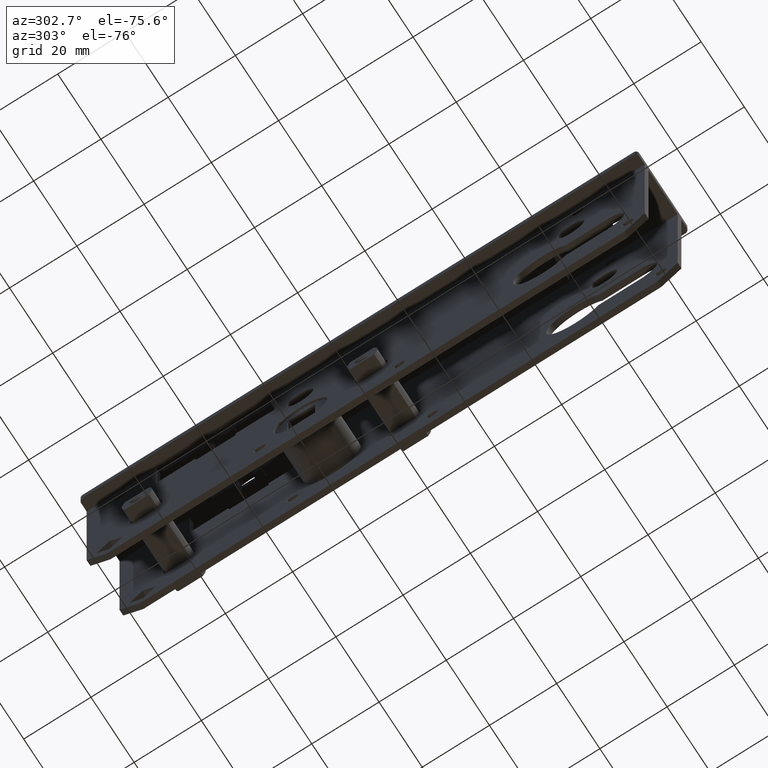
[diagram: clean part render]
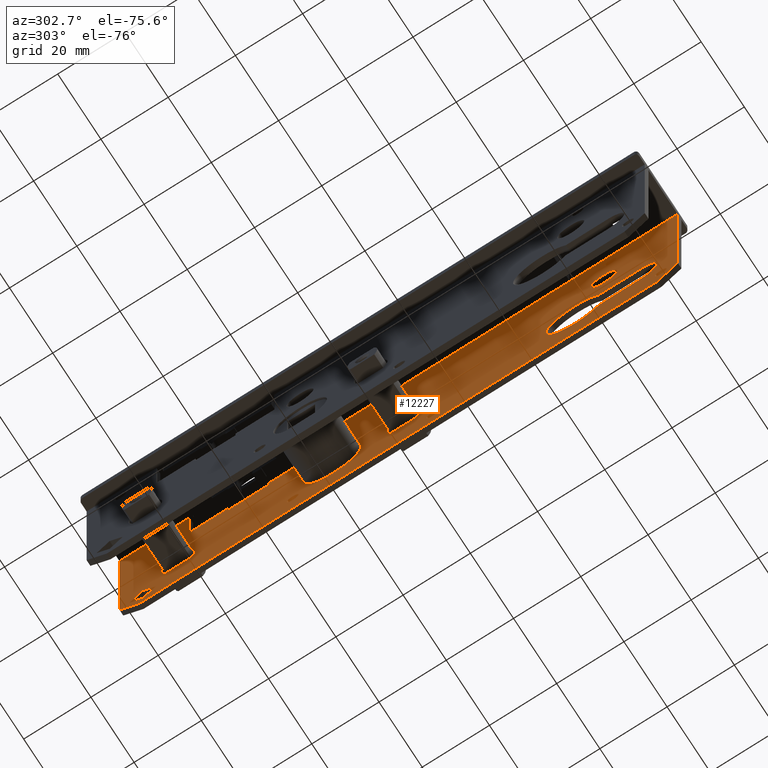
[diagram: same view with one face highlighted and labeled with its STEP entity id]
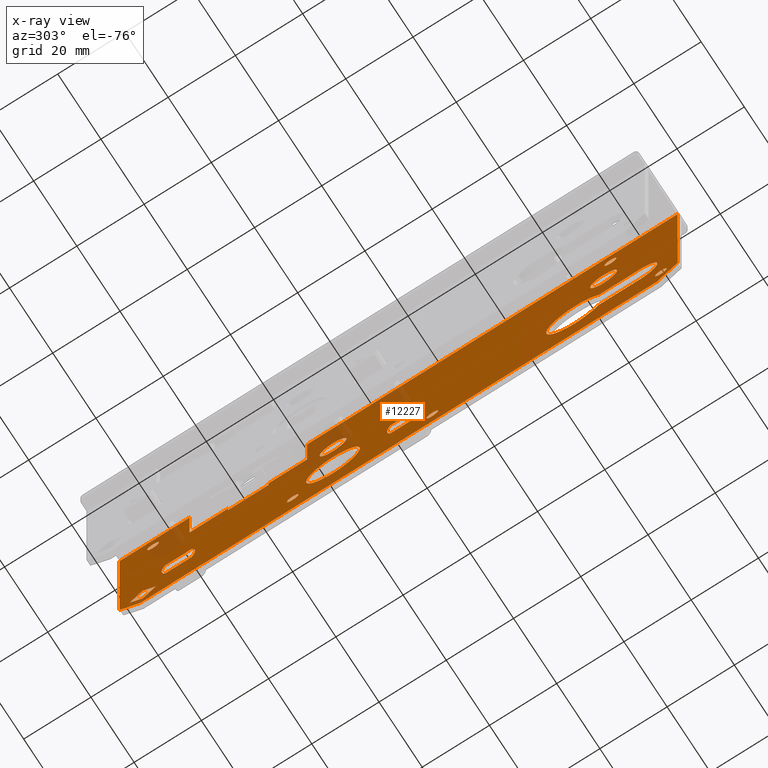
[diagram: x-ray of the same camera — body ghosted, the highlighted face saturated]
A machine part, auxiliary view. The second image highlights one B-rep face of the part: STEP entity #12227.
The next image is the same camera in x-ray: the body ghosted, the highlighted face saturated — about 9% of this face is hidden behind the body in this view.
In plain terms, the highlighted planar face has unit normal (1, -0, 0).
Its self-contained STEP definition (entity closure, byte-faithful):
#3 = EDGE_CURVE ( 'NONE', #12643, #15763, #4450, .T. ) ;
#5 = VERTEX_POINT ( 'NONE', #646 ) ;
#55 = CARTESIAN_POINT ( 'NONE',  ( 6.749999999999978684, 69.42820323027548568, -42.50000000000000000 ) ) ;
#64 = CARTESIAN_POINT ( 'NONE',  ( 6.749999999999968914, -5.428203230275540747, -34.50000000000000000 ) ) ;
#189 = DIRECTION ( 'NONE',  ( 1.250701857229131642E-16, 1.000000000000000000, -0.000000000000000000 ) ) ;
#302 = VECTOR ( 'NONE', #913, 1000.000000000000000 ) ;
#315 = EDGE_LOOP ( 'NONE', ( #10602 ) ) ;
#337 = DIRECTION ( 'NONE',  ( 1.084202172485504434E-16, 1.000000000000000000, 0.000000000000000000 ) ) ;
#406 = CARTESIAN_POINT ( 'NONE',  ( 6.749999999999968026, -4.500000000000025757, -38.50000000000000000 ) ) ;
#470 = CARTESIAN_POINT ( 'NONE',  ( 6.749999999999979572, 82.99999999999997158, -18.09999999999999076 ) ) ;
#494 = CARTESIAN_POINT ( 'NONE',  ( 6.749999999999961808, -57.00000000000000711, -20.50000000000000355 ) ) ;
#646 = CARTESIAN_POINT ( 'NONE',  ( 6.749999999999968026, -8.250000000000026645, -49.50000000000000000 ) ) ;
#658 = AXIS2_PLACEMENT_3D ( 'NONE', #5201, #10115, #5410 ) ;
#679 = EDGE_CURVE ( 'NONE', #18658, #863, #16751, .T. ) ;
#686 = VECTOR ( 'NONE', #12286, 1000.000000000000000 ) ;
#743 = CIRCLE ( 'NONE', #4590, 8.000000000000007105 ) ;
#841 = LINE ( 'NONE', #9186, #15372 ) ;
#848 = LINE ( 'NONE', #5375, #18340 ) ;
#863 = VERTEX_POINT ( 'NONE', #12505 ) ;
#891 = DIRECTION ( 'NONE',  ( -7.792044224716980746E-17, -0.7071067811865459074, 0.7071067811865491270 ) ) ;
#896 = CARTESIAN_POINT ( 'NONE',  ( 6.749999999999979572, 82.99999999999998579, -56.50000000000000000 ) ) ;
#913 = DIRECTION ( 'NONE',  ( -0.000000000000000000, -0.000000000000000000, 1.000000000000000000 ) ) ;
#1045 = CARTESIAN_POINT ( 'NONE',  ( 6.749999999999978684, 77.00000000000000000, -56.50000000000000000 ) ) ;
#1171 = PLANE ( 'NONE',  #13525 ) ;
#1251 = ORIENTED_EDGE ( 'NONE', *, *, #13498, .T. ) ;
#1292 = VERTEX_POINT ( 'NONE', #14004 ) ;
#1520 = ORIENTED_EDGE ( 'NONE', *, *, #14520, .T. ) ;
#1531 = ORIENTED_EDGE ( 'NONE', *, *, #12502, .F. ) ;
#1538 = ORIENTED_EDGE ( 'NONE', *, *, #9021, .T. ) ;
#1724 = DIRECTION ( 'NONE',  ( 1.000000000000000000, -1.250701857229131642E-16, 0.000000000000000000 ) ) ;
#1750 = CARTESIAN_POINT ( 'NONE',  ( 6.749999999999975131, 500000.0000000000582, -16.50000000000000000 ) ) ;
#1787 = VECTOR ( 'NONE', #3080, 1000.000000000000000 ) ;
#1794 = CARTESIAN_POINT ( 'NONE',  ( 6.749999999999979572, 82.99999999999998579, -50.49999999999998579 ) ) ;
#1846 = DIRECTION ( 'NONE',  ( 0.000000000000000000, 1.000000000000000000, 0.000000000000000000 ) ) ;
#2048 = ORIENTED_EDGE ( 'NONE', *, *, #19955, .T. ) ;
#2063 = VECTOR ( 'NONE', #5594, 1000.000000000000114 ) ;
#2129 = ORIENTED_EDGE ( 'NONE', *, *, #18979, .T. ) ;
#2408 = DIRECTION ( 'NONE',  ( 1.250701857229131642E-16, 1.000000000000000000, 0.000000000000000000 ) ) ;
#2444 = AXIS2_PLACEMENT_3D ( 'NONE', #17216, #7806, #3387 ) ;
#2467 = CARTESIAN_POINT ( 'NONE',  ( 6.749999999999975131, 38.69499999999997186, -56.50000000000000000 ) ) ;
#2577 = VERTEX_POINT ( 'NONE', #55 ) ;
#2586 = VERTEX_POINT ( 'NONE', #14229 ) ;
#2613 = EDGE_LOOP ( 'NONE', ( #6534 ) ) ;
#2878 = CARTESIAN_POINT ( 'NONE',  ( 6.749999999999960920, -52.50000000000002132, -38.50000000000000000 ) ) ;
#2940 = AXIS2_PLACEMENT_3D ( 'NONE', #14484, #8204, #16047 ) ;
#3031 = AXIS2_PLACEMENT_3D ( 'NONE', #5935, #20139, #11993 ) ;
#3052 = LINE ( 'NONE', #5789, #19340 ) ;
#3080 = DIRECTION ( 'NONE',  ( -0.000000000000000000, -0.000000000000000000, 1.000000000000000000 ) ) ;
#3170 = CARTESIAN_POINT ( 'NONE',  ( 6.749999999999977796, 62.19499999999997186, -1.500000000000000000 ) ) ;
#3182 = ORIENTED_EDGE ( 'NONE', *, *, #12861, .T. ) ;
#3387 = DIRECTION ( 'NONE',  ( 1.084202172485504434E-16, 1.000000000000000000, 0.000000000000000000 ) ) ;
#3442 = ORIENTED_EDGE ( 'NONE', *, *, #16940, .F. ) ;
#3446 = CARTESIAN_POINT ( 'NONE',  ( 6.749999999999978684, 79.99999999999998579, -49.61091270347398563 ) ) ;
#3503 = ORIENTED_EDGE ( 'NONE', *, *, #10614, .F. ) ;
#3532 = VERTEX_POINT ( 'NONE', #7684 ) ;
#3545 = CIRCLE ( 'NONE', #14390, 4.000000000000000000 ) ;
#3585 = LINE ( 'NONE', #6425, #8536 ) ;
#3617 = EDGE_CURVE ( 'NONE', #13131, #10247, #12596, .T. ) ;
#3638 = CARTESIAN_POINT ( 'NONE',  ( 6.749999999999978684, 69.42820323027548568, -34.50000000000000711 ) ) ;
#3972 = DIRECTION ( 'NONE',  ( 1.000000000000000000, -1.250701857229131642E-16, 0.000000000000000000 ) ) ;
#3977 = EDGE_CURVE ( 'NONE', #20305, #13610, #17014, .T. ) ;
#4165 = VERTEX_POINT ( 'NONE', #16919 ) ;
#4167 = CARTESIAN_POINT ( 'NONE',  ( 6.749999999999979572, 82.99999999999998579, -42.49999999999999289 ) ) ;
#4272 = ORIENTED_EDGE ( 'NONE', *, *, #11344, .T. ) ;
#4305 = CARTESIAN_POINT ( 'NONE',  ( 6.749999999999979572, 82.99999999999997158, -43.54999999999993321 ) ) ;
#4353 = DIRECTION ( 'NONE',  ( 8.843797644893281847E-17, 0.7071067811865474617, -0.7071067811865474617 ) ) ;
#4450 = LINE ( 'NONE', #6816, #13597 ) ;
#4475 = DIRECTION ( 'NONE',  ( 2.168404344971008868E-16, 1.000000000000000000, 0.000000000000000000 ) ) ;
#4507 = VECTOR ( 'NONE', #15163, 1000.000000000000000 ) ;
#4511 = EDGE_LOOP ( 'NONE', ( #18365, #6928, #9113, #6627 ) ) ;
#4556 = CARTESIAN_POINT ( 'NONE',  ( 6.749999999999979572, 82.99999999999998579, -33.44999999999999574 ) ) ;
#4566 = ORIENTED_EDGE ( 'NONE', *, *, #16549, .T. ) ;
#4590 = AXIS2_PLACEMENT_3D ( 'NONE', #17120, #9282, #18800 ) ;
#4633 = CARTESIAN_POINT ( 'NONE',  ( 6.749999999999960920, -71.90000000000001990, -33.44999999999999574 ) ) ;
#4740 = DIRECTION ( 'NONE',  ( 1.084202172485503941E-16, 1.000000000000000000, 0.000000000000000000 ) ) ;
#4794 = CARTESIAN_POINT ( 'NONE',  ( 6.749999999999957367, -78.00000000000002842, -49.50000000000000000 ) ) ;
#4835 = ORIENTED_EDGE ( 'NONE', *, *, #12226, .T. ) ;
#4858 = LINE ( 'NONE', #14076, #686 ) ;
#5017 = LINE ( 'NONE', #470, #5527 ) ;
#5033 = LINE ( 'NONE', #12689, #20331 ) ;
#5058 = AXIS2_PLACEMENT_3D ( 'NONE', #14937, #3972, #5357 ) ;
#5069 = LINE ( 'NONE', #18551, #16647 ) ;
#5163 = CARTESIAN_POINT ( 'NONE',  ( 6.749999999999960920, -61.25000000000001421, -7.500000000000007105 ) ) ;
#5201 = CARTESIAN_POINT ( 'NONE',  ( 6.749999999999975131, 68.49999999999997158, -38.50000000000000711 ) ) ;
#5295 = CARTESIAN_POINT ( 'NONE',  ( 6.749999999999971578, 31.49999999999997158, -46.50000000000000000 ) ) ;
#5324 = CARTESIAN_POINT ( 'NONE',  ( 6.749999999999960920, -83.00000000000001421, -50.49999999999997158 ) ) ;
#5357 = DIRECTION ( 'NONE',  ( 2.168404344971006896E-16, 1.000000000000000000, 0.000000000000000000 ) ) ;
#5375 = CARTESIAN_POINT ( 'NONE',  ( 6.749999999999977796, 62.19499999999997186, -56.50000000000000000 ) ) ;
#5410 = DIRECTION ( 'NONE',  ( 1.084202172485503448E-16, 1.000000000000000000, 0.000000000000000000 ) ) ;
#5481 = CARTESIAN_POINT ( 'NONE',  ( 6.749999999999978684, 72.22182540694797126, -49.61091270347398563 ) ) ;
#5527 = VECTOR ( 'NONE', #20158, 1000.000000000000000 ) ;
#5558 = FACE_BOUND ( 'NONE', #15799, .T. ) ;
#5594 = DIRECTION ( 'NONE',  ( -8.843797644893281847E-17, -0.7071067811865474617, 0.7071067811865474617 ) ) ;
#5700 = EDGE_CURVE ( 'NONE', #9346, #13835, #16762, .T. ) ;
#5789 = CARTESIAN_POINT ( 'NONE',  ( 6.749999999999979572, 82.99999999999998579, -34.50000000000000000 ) ) ;
#5845 = AXIS2_PLACEMENT_3D ( 'NONE', #4794, #11148, #1846 ) ;
#5935 = CARTESIAN_POINT ( 'NONE',  ( 6.749999999999960920, -63.00000000000001421, -7.500000000000007105 ) ) ;
#6019 = DIRECTION ( 'NONE',  ( 1.250701857229131642E-16, 1.000000000000000000, -0.000000000000000000 ) ) ;
#6051 = FACE_BOUND ( 'NONE', #315, .T. ) ;
#6092 = VECTOR ( 'NONE', #891, 1000.000000000000000 ) ;
#6134 = DIRECTION ( 'NONE',  ( -5.424054682957916986E-31, -4.336808689942016158E-15, 1.000000000000000000 ) ) ;
#6137 = EDGE_CURVE ( 'NONE', #19074, #2586, #5069, .T. ) ;
#6150 = ORIENTED_EDGE ( 'NONE', *, *, #16124, .T. ) ;
#6239 = CARTESIAN_POINT ( 'NONE',  ( 6.749999999999973355, 27.19499999999996831, -1.500000000000000000 ) ) ;
#6245 = EDGE_CURVE ( 'NONE', #11218, #16339, #16419, .T. ) ;
#6293 = CIRCLE ( 'NONE', #2940, 1.749999999999996447 ) ;
#6372 = DIRECTION ( 'NONE',  ( -0.000000000000000000, -1.000000000000000000, -0.000000000000000000 ) ) ;
#6423 = ORIENTED_EDGE ( 'NONE', *, *, #18346, .T. ) ;
#6425 = CARTESIAN_POINT ( 'NONE',  ( 6.749999999999979572, 82.99999999999998579, -1.500000000000000000 ) ) ;
#6465 = CARTESIAN_POINT ( 'NONE',  ( 6.749999999999960920, -59.52281994643178820, -33.44999999999999574 ) ) ;
#6534 = ORIENTED_EDGE ( 'NONE', *, *, #12672, .T. ) ;
#6541 = FACE_BOUND ( 'NONE', #20143, .T. ) ;
#6627 = ORIENTED_EDGE ( 'NONE', *, *, #17825, .T. ) ;
#6655 = EDGE_LOOP ( 'NONE', ( #6150, #4566, #19698, #17214 ) ) ;
#6805 = CARTESIAN_POINT ( 'NONE',  ( 6.749999999999978684, 77.00000000000000000, -56.50000000000000000 ) ) ;
#6816 = CARTESIAN_POINT ( 'NONE',  ( 6.749999999999960920, -83.00000000000001421, -56.50000000000000000 ) ) ;
#6830 = CARTESIAN_POINT ( 'NONE',  ( 6.749999999999971578, 33.24999999999996447, -46.50000000000000000 ) ) ;
#6928 = ORIENTED_EDGE ( 'NONE', *, *, #12244, .T. ) ;
#6988 = LINE ( 'NONE', #15451, #15108 ) ;
#7058 = FACE_BOUND ( 'NONE', #17523, .T. ) ;
#7220 = DIRECTION ( 'NONE',  ( 0.000000000000000000, 0.000000000000000000, -1.000000000000000000 ) ) ;
#7292 = LINE ( 'NONE', #1750, #19384 ) ;
#7343 = DIRECTION ( 'NONE',  ( 1.250701857229131642E-16, 1.000000000000000000, 0.000000000000000000 ) ) ;
#7481 = EDGE_CURVE ( 'NONE', #16242, #16242, #3545, .T. ) ;
#7524 = FACE_BOUND ( 'NONE', #12438, .T. ) ;
#7609 = VERTEX_POINT ( 'NONE', #6830 ) ;
#7611 = EDGE_CURVE ( 'NONE', #14289, #19074, #5033, .T. ) ;
#7684 = CARTESIAN_POINT ( 'NONE',  ( 6.749999999999975131, 38.69499999999997186, -18.10000000000000142 ) ) ;
#7717 = VERTEX_POINT ( 'NONE', #3170 ) ;
#7729 = CIRCLE ( 'NONE', #17116, 1.750000000000001554 ) ;
#7806 = DIRECTION ( 'NONE',  ( 1.000000000000000000, -1.250701857229131642E-16, 0.000000000000000000 ) ) ;
#7823 = DIRECTION ( 'NONE',  ( 8.843797644893281847E-17, 0.7071067811865474617, 0.7071067811865474617 ) ) ;
#7947 = LINE ( 'NONE', #11920, #2063 ) ;
#8204 = DIRECTION ( 'NONE',  ( 1.000000000000000000, -1.250701857229131642E-16, 0.000000000000000000 ) ) ;
#8273 = VECTOR ( 'NONE', #10996, 1000.000000000000000 ) ;
#8306 = ORIENTED_EDGE ( 'NONE', *, *, #13717, .T. ) ;
#8411 = VERTEX_POINT ( 'NONE', #16613 ) ;
#8513 = FACE_BOUND ( 'NONE', #4511, .T. ) ;
#8536 = VECTOR ( 'NONE', #189, 1000.000000000000000 ) ;
#8642 = CARTESIAN_POINT ( 'NONE',  ( 6.749999999999968026, -5.428203230275540747, -42.49999999999999289 ) ) ;
#8948 = EDGE_CURVE ( 'NONE', #15718, #13131, #19347, .T. ) ;
#9021 = EDGE_CURVE ( 'NONE', #11568, #11568, #13406, .T. ) ;
#9095 = VERTEX_POINT ( 'NONE', #13035 ) ;
#9113 = ORIENTED_EDGE ( 'NONE', *, *, #6245, .T. ) ;
#9186 = CARTESIAN_POINT ( 'NONE',  ( 6.749999999999978684, 78.05545635173697860, -51.55545635173699281 ) ) ;
#9208 = EDGE_LOOP ( 'NONE', ( #19956 ) ) ;
#9263 = ORIENTED_EDGE ( 'NONE', *, *, #19642, .T. ) ;
#9282 = DIRECTION ( 'NONE',  ( 1.000000000000000000, -1.250701857229131642E-16, 0.000000000000000000 ) ) ;
#9334 = VERTEX_POINT ( 'NONE', #494 ) ;
#9346 = VERTEX_POINT ( 'NONE', #16995 ) ;
#9367 = CARTESIAN_POINT ( 'NONE',  ( 6.749999999999975131, 61.57179676972446458, -42.50000000000000000 ) ) ;
#9505 = FACE_BOUND ( 'NONE', #14381, .T. ) ;
#9543 = CARTESIAN_POINT ( 'NONE',  ( 6.749999999999978684, 73.00000000000000000, -7.500000000000007105 ) ) ;
#9573 = DIRECTION ( 'NONE',  ( 1.717547996016636297E-16, 1.000000000000000000, 0.000000000000000000 ) ) ;
#9740 = ORIENTED_EDGE ( 'NONE', *, *, #13987, .T. ) ;
#9845 = VERTEX_POINT ( 'NONE', #19298 ) ;
#10073 = CARTESIAN_POINT ( 'NONE',  ( 6.749999999999978684, 74.75000000000000000, -7.500000000000007105 ) ) ;
#10115 = DIRECTION ( 'NONE',  ( 1.000000000000000000, -1.250701857229131642E-16, 0.000000000000000000 ) ) ;
#10118 = DIRECTION ( 'NONE',  ( -0.000000000000000000, -0.000000000000000000, 1.000000000000000000 ) ) ;
#10136 = CARTESIAN_POINT ( 'NONE',  ( 6.749999999999975131, 50.69499999999997897, -18.09999999999999787 ) ) ;
#10138 = CARTESIAN_POINT ( 'NONE',  ( 6.749999999999972466, 23.49999999999997513, -20.50000000000000355 ) ) ;
#10219 = CIRCLE ( 'NONE', #5058, 4.000000000000003553 ) ;
#10247 = VERTEX_POINT ( 'NONE', #9367 ) ;
#10380 = VERTEX_POINT ( 'NONE', #10136 ) ;
#10501 = VECTOR ( 'NONE', #6134, 1000.000000000000000 ) ;
#10525 = ORIENTED_EDGE ( 'NONE', *, *, #17187, .T. ) ;
#10540 = CIRCLE ( 'NONE', #5845, 1.750000000000001554 ) ;
#10602 = ORIENTED_EDGE ( 'NONE', *, *, #11666, .T. ) ;
#10606 = ORIENTED_EDGE ( 'NONE', *, *, #3977, .F. ) ;
#10614 = EDGE_CURVE ( 'NONE', #18287, #10655, #13849, .T. ) ;
#10655 = VERTEX_POINT ( 'NONE', #13011 ) ;
#10760 = LINE ( 'NONE', #2467, #18883 ) ;
#10862 = ORIENTED_EDGE ( 'NONE', *, *, #19185, .T. ) ;
#10929 = CARTESIAN_POINT ( 'NONE',  ( 6.749999999999978684, 76.11091270347397142, -45.72182540694797837 ) ) ;
#10934 = EDGE_LOOP ( 'NONE', ( #10862, #3182, #10606, #12830, #18425, #3503, #17423, #3442, #4272, #19824, #9740, #13714, #1531, #4835 ) ) ;
#10947 = CIRCLE ( 'NONE', #12776, 5.050000000000013145 ) ;
#10996 = DIRECTION ( 'NONE',  ( -1.250701857229131642E-16, -1.000000000000000000, 0.000000000000000000 ) ) ;
#11110 = CARTESIAN_POINT ( 'NONE',  ( 6.749999999999957367, -71.90000000000001990, -38.50000000000000000 ) ) ;
#11129 = VECTOR ( 'NONE', #7343, 1000.000000000000000 ) ;
#11131 = ORIENTED_EDGE ( 'NONE', *, *, #14383, .T. ) ;
#11148 = DIRECTION ( 'NONE',  ( 1.000000000000000000, -1.250701857229131642E-16, 0.000000000000000000 ) ) ;
#11218 = VERTEX_POINT ( 'NONE', #6465 ) ;
#11249 = DIRECTION ( 'NONE',  ( 1.000000000000000000, -1.250701857229131642E-16, 0.000000000000000000 ) ) ;
#11298 = VERTEX_POINT ( 'NONE', #13233 ) ;
#11344 = EDGE_CURVE ( 'NONE', #17800, #12643, #14213, .T. ) ;
#11546 = VERTEX_POINT ( 'NONE', #10073 ) ;
#11568 = VERTEX_POINT ( 'NONE', #5163 ) ;
#11666 = EDGE_CURVE ( 'NONE', #9095, #9095, #10540, .T. ) ;
#11707 = FACE_BOUND ( 'NONE', #12347, .T. ) ;
#11736 = VERTEX_POINT ( 'NONE', #64 ) ;
#11885 = DIRECTION ( 'NONE',  ( 1.000000000000000000, -1.250701857229131642E-16, 0.000000000000000000 ) ) ;
#11904 = LINE ( 'NONE', #4305, #18331 ) ;
#11920 = CARTESIAN_POINT ( 'NONE',  ( 6.749999999999979572, 84.94454364826299297, -54.55545635173699281 ) ) ;
#11993 = DIRECTION ( 'NONE',  ( 0.000000000000000000, 1.000000000000000000, 0.000000000000000000 ) ) ;
#12226 = EDGE_CURVE ( 'NONE', #8411, #3532, #10760, .T. ) ;
#12227 = ADVANCED_FACE ( 'NONE', ( #15405, #9505, #8513, #6541, #6051, #18140, #11707, #7058, #5558, #19623, #7524, #13448, #16397 ), #1171, .F. ) ;
#12244 = EDGE_CURVE ( 'NONE', #4165, #11218, #14431, .T. ) ;
#12286 = DIRECTION ( 'NONE',  ( 1.250701857229131642E-16, 1.000000000000000000, 0.000000000000000000 ) ) ;
#12347 = EDGE_LOOP ( 'NONE', ( #6423 ) ) ;
#12438 = EDGE_LOOP ( 'NONE', ( #13339, #9263, #1251, #1520 ) ) ;
#12502 = EDGE_CURVE ( 'NONE', #8411, #9346, #7292, .T. ) ;
#12505 = CARTESIAN_POINT ( 'NONE',  ( 6.749999999999971578, 2.428203230275486568, -42.49999999999999289 ) ) ;
#12596 = CIRCLE ( 'NONE', #658, 8.000000000000007105 ) ;
#12597 = CARTESIAN_POINT ( 'NONE',  ( 6.749999999999968026, 1.499999999999974465, -38.49999999999999289 ) ) ;
#12609 = CARTESIAN_POINT ( 'NONE',  ( 6.749999999999975131, 62.19499999997424311, -16.50000000000000000 ) ) ;
#12643 = VERTEX_POINT ( 'NONE', #5324 ) ;
#12652 = VERTEX_POINT ( 'NONE', #3446 ) ;
#12672 = EDGE_CURVE ( 'NONE', #5, #5, #6293, .T. ) ;
#12689 = CARTESIAN_POINT ( 'NONE',  ( 6.749999999999978684, 74.16636905521096423, -47.66636905521097844 ) ) ;
#12747 = CARTESIAN_POINT ( 'NONE',  ( 6.749999999999960920, -83.00000000000001421, -1.500000000000000000 ) ) ;
#12776 = AXIS2_PLACEMENT_3D ( 'NONE', #11110, #11249, #9573 ) ;
#12830 = ORIENTED_EDGE ( 'NONE', *, *, #19202, .T. ) ;
#12837 = DIRECTION ( 'NONE',  ( 0.000000000000000000, 1.000000000000000000, 0.000000000000000000 ) ) ;
#12861 = EDGE_CURVE ( 'NONE', #10380, #13610, #16855, .T. ) ;
#12899 = LINE ( 'NONE', #1045, #4507 ) ;
#13011 = CARTESIAN_POINT ( 'NONE',  ( 6.749999999999979572, 82.99999999999998579, -1.500000000000000000 ) ) ;
#13013 = AXIS2_PLACEMENT_3D ( 'NONE', #12597, #1724, #4740 ) ;
#13026 = DIRECTION ( 'NONE',  ( 1.000000000000000000, -1.250701857229131642E-16, 0.000000000000000000 ) ) ;
#13035 = CARTESIAN_POINT ( 'NONE',  ( 6.749999999999957367, -76.25000000000002842, -49.50000000000000000 ) ) ;
#13131 = VERTEX_POINT ( 'NONE', #20083 ) ;
#13233 = CARTESIAN_POINT ( 'NONE',  ( 6.749999999999971578, 2.428203230275485680, -34.50000000000000000 ) ) ;
#13339 = ORIENTED_EDGE ( 'NONE', *, *, #679, .T. ) ;
#13406 = CIRCLE ( 'NONE', #3031, 1.750000000000001554 ) ;
#13448 = FACE_BOUND ( 'NONE', #6655, .T. ) ;
#13449 = CARTESIAN_POINT ( 'NONE',  ( 6.749999999999973355, 27.19499999999996831, -56.50000000000000000 ) ) ;
#13498 = EDGE_CURVE ( 'NONE', #11298, #11736, #3052, .T. ) ;
#13525 = AXIS2_PLACEMENT_3D ( 'NONE', #896, #11885, #2408 ) ;
#13597 = VECTOR ( 'NONE', #16161, 1000.000000000000000 ) ;
#13610 = VERTEX_POINT ( 'NONE', #14100 ) ;
#13714 = ORIENTED_EDGE ( 'NONE', *, *, #5700, .F. ) ;
#13717 = EDGE_CURVE ( 'NONE', #9334, #9334, #10219, .T. ) ;
#13835 = VERTEX_POINT ( 'NONE', #6239 ) ;
#13849 = LINE ( 'NONE', #20315, #1787 ) ;
#13987 = EDGE_CURVE ( 'NONE', #15763, #13835, #18582, .T. ) ;
#14004 = CARTESIAN_POINT ( 'NONE',  ( 6.749999999999957367, -71.90000000000001990, -43.55000000000001847 ) ) ;
#14076 = CARTESIAN_POINT ( 'NONE',  ( 6.749999999999979572, 82.99999999999998579, -42.50000000000000000 ) ) ;
#14100 = CARTESIAN_POINT ( 'NONE',  ( 6.749999999999975131, 50.69499999999997186, -16.49999999999999645 ) ) ;
#14169 = ORIENTED_EDGE ( 'NONE', *, *, #8948, .T. ) ;
#14213 = LINE ( 'NONE', #19641, #6092 ) ;
#14229 = CARTESIAN_POINT ( 'NONE',  ( 6.749999999999978684, 76.11091270347397142, -53.50000000000000000 ) ) ;
#14248 = AXIS2_PLACEMENT_3D ( 'NONE', #406, #17809, #337 ) ;
#14289 = VERTEX_POINT ( 'NONE', #10929 ) ;
#14290 = AXIS2_PLACEMENT_3D ( 'NONE', #2878, #13026, #19201 ) ;
#14320 = CARTESIAN_POINT ( 'NONE',  ( 6.749999999999961808, -77.00000000000001421, -56.50000000000000000 ) ) ;
#14381 = EDGE_LOOP ( 'NONE', ( #8306 ) ) ;
#14383 = EDGE_CURVE ( 'NONE', #9845, #9845, #17821, .T. ) ;
#14390 = AXIS2_PLACEMENT_3D ( 'NONE', #18747, #16988, #4475 ) ;
#14431 = CIRCLE ( 'NONE', #14290, 8.650000000000005684 ) ;
#14484 = CARTESIAN_POINT ( 'NONE',  ( 6.749999999999968026, -10.00000000000002309, -49.50000000000000000 ) ) ;
#14520 = EDGE_CURVE ( 'NONE', #11736, #18658, #18799, .T. ) ;
#14937 = CARTESIAN_POINT ( 'NONE',  ( 6.749999999999960920, -61.00000000000001421, -20.50000000000000355 ) ) ;
#15101 = DIRECTION ( 'NONE',  ( 1.101961462120572692E-16, 1.000000000000000000, -0.000000000000000000 ) ) ;
#15108 = VECTOR ( 'NONE', #6019, 1000.000000000000000 ) ;
#15136 = VECTOR ( 'NONE', #17406, 1000.000000000000000 ) ;
#15163 = DIRECTION ( 'NONE',  ( -8.843797644893262125E-17, -0.7071067811865459074, -0.7071067811865491270 ) ) ;
#15372 = VECTOR ( 'NONE', #7823, 1000.000000000000114 ) ;
#15405 = FACE_BOUND ( 'NONE', #9208, .T. ) ;
#15451 = CARTESIAN_POINT ( 'NONE',  ( 6.749999999999979572, 82.99999999999998579, -56.50000000000000000 ) ) ;
#15556 = VECTOR ( 'NONE', #16166, 1000.000000000000000 ) ;
#15562 = CARTESIAN_POINT ( 'NONE',  ( 6.749999999999976019, 50.69500000000014239, -56.50000000000014211 ) ) ;
#15718 = VERTEX_POINT ( 'NONE', #3638 ) ;
#15763 = VERTEX_POINT ( 'NONE', #12747 ) ;
#15799 = EDGE_LOOP ( 'NONE', ( #1538 ) ) ;
#15814 = CARTESIAN_POINT ( 'NONE',  ( 6.749999999999979572, 82.99999999999998579, -34.50000000000000711 ) ) ;
#16047 = DIRECTION ( 'NONE',  ( 0.000000000000000000, 1.000000000000000000, 0.000000000000000000 ) ) ;
#16124 = EDGE_CURVE ( 'NONE', #2586, #12652, #841, .T. ) ;
#16161 = DIRECTION ( 'NONE',  ( -0.000000000000000000, -0.000000000000000000, 1.000000000000000000 ) ) ;
#16166 = DIRECTION ( 'NONE',  ( -0.000000000000000000, -1.000000000000000000, -0.000000000000000000 ) ) ;
#16242 = VERTEX_POINT ( 'NONE', #10138 ) ;
#16339 = VERTEX_POINT ( 'NONE', #4633 ) ;
#16397 = FACE_OUTER_BOUND ( 'NONE', #10934, .T. ) ;
#16419 = LINE ( 'NONE', #4556, #8273 ) ;
#16462 = AXIS2_PLACEMENT_3D ( 'NONE', #5295, #19163, #17697 ) ;
#16549 = EDGE_CURVE ( 'NONE', #12652, #14289, #7947, .T. ) ;
#16613 = CARTESIAN_POINT ( 'NONE',  ( 6.749999999999975131, 38.69500000001835360, -16.50000000000000000 ) ) ;
#16619 = CARTESIAN_POINT ( 'NONE',  ( 6.749999999999973355, 27.19499999999996831, -1.500000000000000000 ) ) ;
#16623 = EDGE_CURVE ( 'NONE', #1292, #4165, #11904, .T. ) ;
#16647 = VECTOR ( 'NONE', #4353, 1000.000000000000114 ) ;
#16648 = EDGE_LOOP ( 'NONE', ( #2048, #10525, #14169, #18428 ) ) ;
#16751 = LINE ( 'NONE', #4167, #11129 ) ;
#16762 = LINE ( 'NONE', #13449, #302 ) ;
#16855 = LINE ( 'NONE', #15562, #10501 ) ;
#16919 = CARTESIAN_POINT ( 'NONE',  ( 6.749999999999960920, -59.52281994643178820, -43.55000000000001847 ) ) ;
#16940 = EDGE_CURVE ( 'NONE', #17800, #19138, #6988, .T. ) ;
#16988 = DIRECTION ( 'NONE',  ( 1.000000000000000000, -1.250701857229131642E-16, 0.000000000000000000 ) ) ;
#16995 = CARTESIAN_POINT ( 'NONE',  ( 6.749999999999973355, 27.19499999999996831, -16.50000000000000000 ) ) ;
#17014 = LINE ( 'NONE', #17631, #15556 ) ;
#17060 = VECTOR ( 'NONE', #15101, 1000.000000000000000 ) ;
#17116 = AXIS2_PLACEMENT_3D ( 'NONE', #9543, #19247, #12837 ) ;
#17120 = CARTESIAN_POINT ( 'NONE',  ( 6.749999999999975131, 62.49999999999997158, -38.50000000000000711 ) ) ;
#17187 = EDGE_CURVE ( 'NONE', #2577, #15718, #743, .T. ) ;
#17214 = ORIENTED_EDGE ( 'NONE', *, *, #6137, .T. ) ;
#17216 = CARTESIAN_POINT ( 'NONE',  ( 6.749999999999971578, 19.49999999999997513, -38.50000000000000000 ) ) ;
#17406 = DIRECTION ( 'NONE',  ( -1.250701857229131642E-16, -1.000000000000000000, 0.000000000000000000 ) ) ;
#17423 = ORIENTED_EDGE ( 'NONE', *, *, #17674, .T. ) ;
#17523 = EDGE_LOOP ( 'NONE', ( #2129 ) ) ;
#17631 = CARTESIAN_POINT ( 'NONE',  ( 6.749999999999975131, 500000.0000000000582, -16.50000000000000000 ) ) ;
#17632 = DIRECTION ( 'NONE',  ( -8.843797644893281847E-17, -0.7071067811865474617, -0.7071067811865474617 ) ) ;
#17674 = EDGE_CURVE ( 'NONE', #18287, #19138, #12899, .T. ) ;
#17697 = DIRECTION ( 'NONE',  ( 0.000000000000000000, 1.000000000000000000, 0.000000000000000000 ) ) ;
#17720 = CIRCLE ( 'NONE', #14248, 8.000000000000000000 ) ;
#17800 = VERTEX_POINT ( 'NONE', #14320 ) ;
#17809 = DIRECTION ( 'NONE',  ( 1.000000000000000000, -1.250701857229131642E-16, 0.000000000000000000 ) ) ;
#17821 = CIRCLE ( 'NONE', #2444, 8.000000000000000000 ) ;
#17825 = EDGE_CURVE ( 'NONE', #16339, #1292, #10947, .T. ) ;
#18140 = FACE_BOUND ( 'NONE', #2613, .T. ) ;
#18287 = VERTEX_POINT ( 'NONE', #1794 ) ;
#18331 = VECTOR ( 'NONE', #18442, 1000.000000000000000 ) ;
#18340 = VECTOR ( 'NONE', #10118, 1000.000000000000000 ) ;
#18346 = EDGE_CURVE ( 'NONE', #7609, #7609, #20159, .T. ) ;
#18365 = ORIENTED_EDGE ( 'NONE', *, *, #16623, .T. ) ;
#18425 = ORIENTED_EDGE ( 'NONE', *, *, #20051, .T. ) ;
#18428 = ORIENTED_EDGE ( 'NONE', *, *, #3617, .T. ) ;
#18442 = DIRECTION ( 'NONE',  ( 1.250701857229131642E-16, 1.000000000000000000, 5.606199371646698603E-16 ) ) ;
#18551 = CARTESIAN_POINT ( 'NONE',  ( 6.749999999999979572, 81.05545635173697860, -58.44454364826300719 ) ) ;
#18582 = LINE ( 'NONE', #16619, #17060 ) ;
#18658 = VERTEX_POINT ( 'NONE', #8642 ) ;
#18747 = CARTESIAN_POINT ( 'NONE',  ( 6.749999999999971578, 19.49999999999997513, -20.50000000000000355 ) ) ;
#18799 = CIRCLE ( 'NONE', #13013, 8.000000000000003553 ) ;
#18800 = DIRECTION ( 'NONE',  ( 1.084202172485503448E-16, 1.000000000000000000, 0.000000000000000000 ) ) ;
#18883 = VECTOR ( 'NONE', #7220, 1000.000000000000000 ) ;
#18979 = EDGE_CURVE ( 'NONE', #11546, #11546, #7729, .T. ) ;
#19074 = VERTEX_POINT ( 'NONE', #5481 ) ;
#19138 = VERTEX_POINT ( 'NONE', #6805 ) ;
#19163 = DIRECTION ( 'NONE',  ( 1.000000000000000000, -1.250701857229131642E-16, 0.000000000000000000 ) ) ;
#19185 = EDGE_CURVE ( 'NONE', #3532, #10380, #5017, .T. ) ;
#19201 = DIRECTION ( 'NONE',  ( 1.002730332934569904E-16, 1.000000000000000000, 0.000000000000000000 ) ) ;
#19202 = EDGE_CURVE ( 'NONE', #20305, #7717, #848, .T. ) ;
#19247 = DIRECTION ( 'NONE',  ( 1.000000000000000000, -1.250701857229131642E-16, 0.000000000000000000 ) ) ;
#19298 = CARTESIAN_POINT ( 'NONE',  ( 6.749999999999972466, 27.49999999999997513, -38.50000000000000000 ) ) ;
#19340 = VECTOR ( 'NONE', #19859, 1000.000000000000000 ) ;
#19347 = LINE ( 'NONE', #15814, #15136 ) ;
#19384 = VECTOR ( 'NONE', #6372, 1000.000000000000000 ) ;
#19623 = FACE_BOUND ( 'NONE', #16648, .T. ) ;
#19641 = CARTESIAN_POINT ( 'NONE',  ( 6.749999999999961808, -77.00000000000001421, -56.50000000000000000 ) ) ;
#19642 = EDGE_CURVE ( 'NONE', #863, #11298, #17720, .T. ) ;
#19698 = ORIENTED_EDGE ( 'NONE', *, *, #7611, .T. ) ;
#19824 = ORIENTED_EDGE ( 'NONE', *, *, #3, .T. ) ;
#19859 = DIRECTION ( 'NONE',  ( -1.250701857229131642E-16, -1.000000000000000000, 0.000000000000000000 ) ) ;
#19955 = EDGE_CURVE ( 'NONE', #10247, #2577, #4858, .T. ) ;
#19956 = ORIENTED_EDGE ( 'NONE', *, *, #7481, .T. ) ;
#20051 = EDGE_CURVE ( 'NONE', #7717, #10655, #3585, .T. ) ;
#20083 = CARTESIAN_POINT ( 'NONE',  ( 6.749999999999977796, 61.57179676972446458, -34.50000000000000711 ) ) ;
#20139 = DIRECTION ( 'NONE',  ( 1.000000000000000000, -1.250701857229131642E-16, 0.000000000000000000 ) ) ;
#20143 = EDGE_LOOP ( 'NONE', ( #11131 ) ) ;
#20158 = DIRECTION ( 'NONE',  ( 1.250701857229131642E-16, 1.000000000000000000, 2.891205793294677833E-16 ) ) ;
#20159 = CIRCLE ( 'NONE', #16462, 1.749999999999994671 ) ;
#20305 = VERTEX_POINT ( 'NONE', #12609 ) ;
#20315 = CARTESIAN_POINT ( 'NONE',  ( 6.749999999999979572, 82.99999999999998579, -56.50000000000000000 ) ) ;
#20331 = VECTOR ( 'NONE', #17632, 1000.000000000000114 ) ;